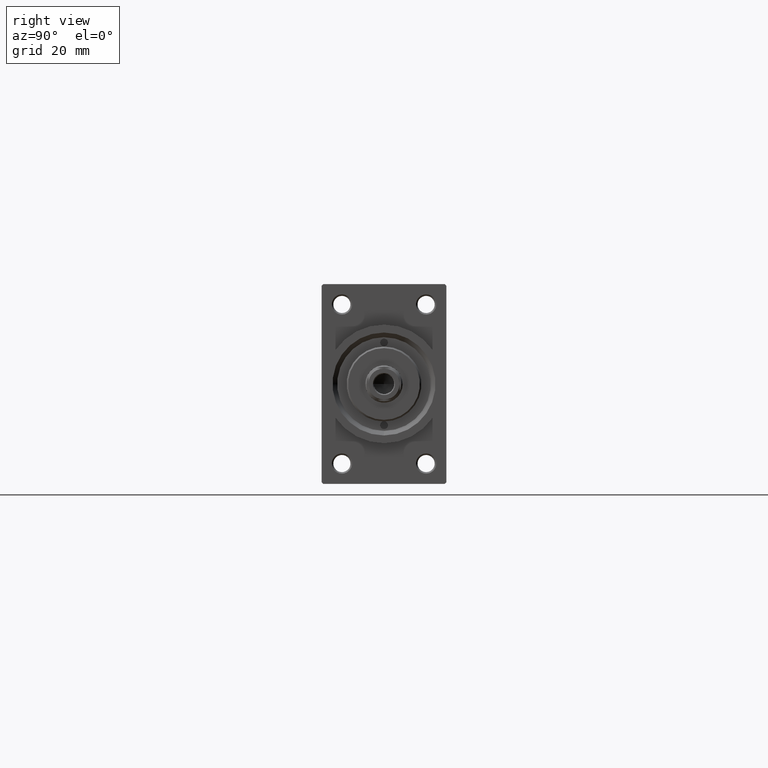
[diagram: clean part render]
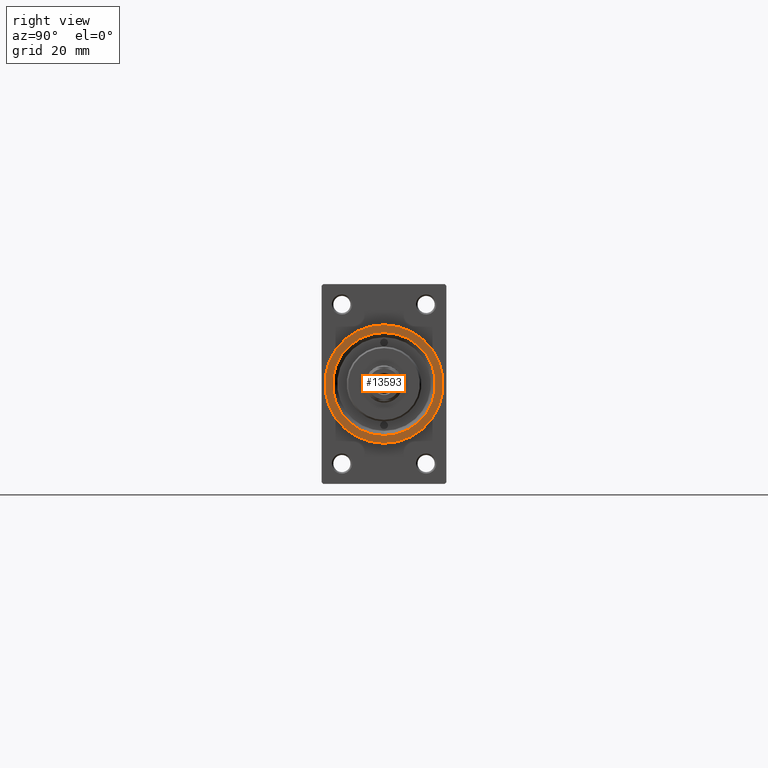
[diagram: same view with one face highlighted and labeled with its STEP entity id]
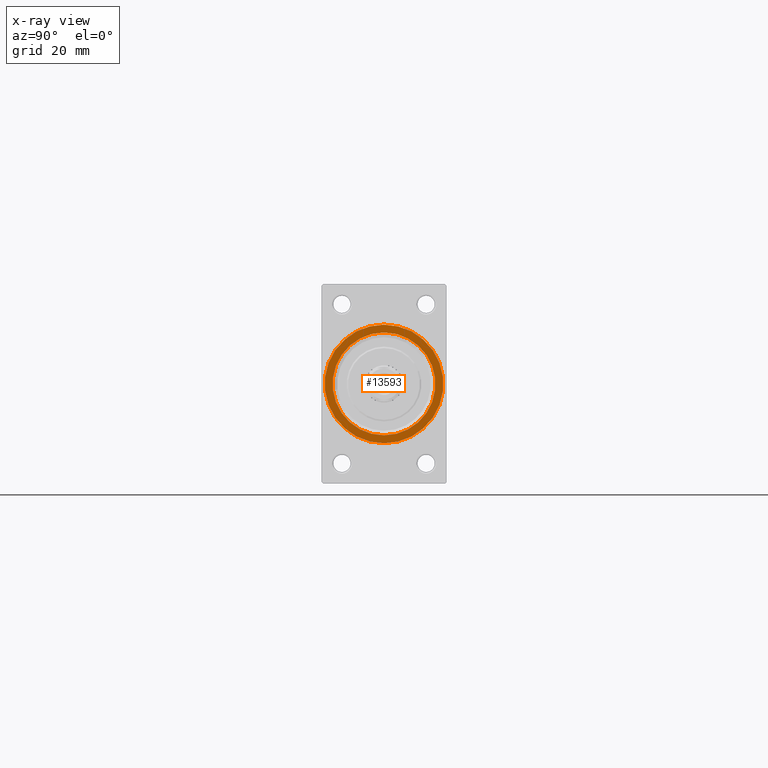
[diagram: x-ray of the same camera — body ghosted, the highlighted face saturated]
A machine part, right view. The second image highlights one B-rep face of the part: STEP entity #13593.
The next image is the same camera in x-ray: the body ghosted, the highlighted face saturated — about 0% of this face is hidden behind the body in this view.
In plain terms, the highlighted planar face has unit normal (1, 0, 0).
Its self-contained STEP definition (entity closure, byte-faithful):
#1305 = CIRCLE ( 'NONE', #33409, 16.49999999999998579 ) ;
#3299 = DIRECTION ( 'NONE',  ( 0.000000000000000000, 0.000000000000000000, -1.000000000000000000 ) ) ;
#4434 = DIRECTION ( 'NONE',  ( -1.000000000000000000, -0.000000000000000000, -0.000000000000000000 ) ) ;
#4539 = CARTESIAN_POINT ( 'NONE',  ( 199.0000000000000000, 0.000000000000000000, 0.000000000000000000 ) ) ;
#5152 = CARTESIAN_POINT ( 'NONE',  ( 199.0000000000000000, 2.020667218593131128E-15, 16.49999999999998579 ) ) ;
#5193 = EDGE_LOOP ( 'NONE', ( #36937, #7794 ) ) ;
#6909 = ORIENTED_EDGE ( 'NONE', *, *, #43508, .T. ) ;
#7794 = ORIENTED_EDGE ( 'NONE', *, *, #21221, .T. ) ;
#8056 = PLANE ( 'NONE',  #15513 ) ;
#8123 = DIRECTION ( 'NONE',  ( 0.000000000000000000, 0.000000000000000000, -1.000000000000000000 ) ) ;
#8710 = DIRECTION ( 'NONE',  ( 0.000000000000000000, 0.000000000000000000, -1.000000000000000000 ) ) ;
#9897 = DIRECTION ( 'NONE',  ( -1.000000000000000000, -0.000000000000000000, -0.000000000000000000 ) ) ;
#9948 = CARTESIAN_POINT ( 'NONE',  ( 199.0000000000000000, 2.326828918379970970E-15, -19.00000000000000000 ) ) ;
#10498 = DIRECTION ( 'NONE',  ( 0.000000000000000000, 0.000000000000000000, -1.000000000000000000 ) ) ;
#13593 = ADVANCED_FACE ( 'NONE', ( #40824, #14997 ), #8056, .T. ) ;
#14997 = FACE_OUTER_BOUND ( 'NONE', #5193, .T. ) ;
#15004 = VERTEX_POINT ( 'NONE', #33981 ) ;
#15513 = AXIS2_PLACEMENT_3D ( 'NONE', #29362, #25770, #3299 ) ;
#18662 = CIRCLE ( 'NONE', #44604, 16.49999999999998579 ) ;
#21124 = AXIS2_PLACEMENT_3D ( 'NONE', #43249, #43954, #10498 ) ;
#21221 = EDGE_CURVE ( 'NONE', #21405, #34683, #37157, .T. ) ;
#21405 = VERTEX_POINT ( 'NONE', #9948 ) ;
#22721 = EDGE_CURVE ( 'NONE', #29783, #15004, #1305, .T. ) ;
#23245 = CARTESIAN_POINT ( 'NONE',  ( 199.0000000000000000, 0.000000000000000000, 19.00000000000000000 ) ) ;
#24290 = CIRCLE ( 'NONE', #27248, 19.00000000000000000 ) ;
#24713 = EDGE_CURVE ( 'NONE', #34683, #21405, #24290, .T. ) ;
#25770 = DIRECTION ( 'NONE',  ( 1.000000000000000000, 0.000000000000000000, 0.000000000000000000 ) ) ;
#27248 = AXIS2_PLACEMENT_3D ( 'NONE', #4539, #40189, #8123 ) ;
#29281 = ORIENTED_EDGE ( 'NONE', *, *, #22721, .T. ) ;
#29362 = CARTESIAN_POINT ( 'NONE',  ( 199.0000000000000000, 0.000000000000000000, 0.000000000000000000 ) ) ;
#29783 = VERTEX_POINT ( 'NONE', #5152 ) ;
#30566 = EDGE_LOOP ( 'NONE', ( #6909, #29281 ) ) ;
#33409 = AXIS2_PLACEMENT_3D ( 'NONE', #41476, #4434, #8710 ) ;
#33981 = CARTESIAN_POINT ( 'NONE',  ( 199.0000000000000000, 0.000000000000000000, -16.49999999999998579 ) ) ;
#34683 = VERTEX_POINT ( 'NONE', #23245 ) ;
#36937 = ORIENTED_EDGE ( 'NONE', *, *, #24713, .T. ) ;
#37157 = CIRCLE ( 'NONE', #21124, 19.00000000000000000 ) ;
#38596 = DIRECTION ( 'NONE',  ( 0.000000000000000000, 0.000000000000000000, -1.000000000000000000 ) ) ;
#40189 = DIRECTION ( 'NONE',  ( 1.000000000000000000, 0.000000000000000000, 0.000000000000000000 ) ) ;
#40824 = FACE_BOUND ( 'NONE', #30566, .T. ) ;
#41476 = CARTESIAN_POINT ( 'NONE',  ( 199.0000000000000000, 0.000000000000000000, 0.000000000000000000 ) ) ;
#43249 = CARTESIAN_POINT ( 'NONE',  ( 199.0000000000000000, 0.000000000000000000, 0.000000000000000000 ) ) ;
#43508 = EDGE_CURVE ( 'NONE', #15004, #29783, #18662, .T. ) ;
#43954 = DIRECTION ( 'NONE',  ( 1.000000000000000000, 0.000000000000000000, 0.000000000000000000 ) ) ;
#44604 = AXIS2_PLACEMENT_3D ( 'NONE', #46260, #9897, #38596 ) ;
#46260 = CARTESIAN_POINT ( 'NONE',  ( 199.0000000000000000, 0.000000000000000000, 0.000000000000000000 ) ) ;